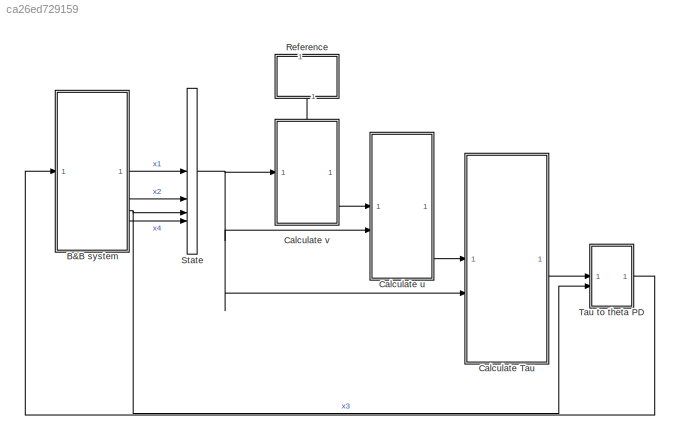
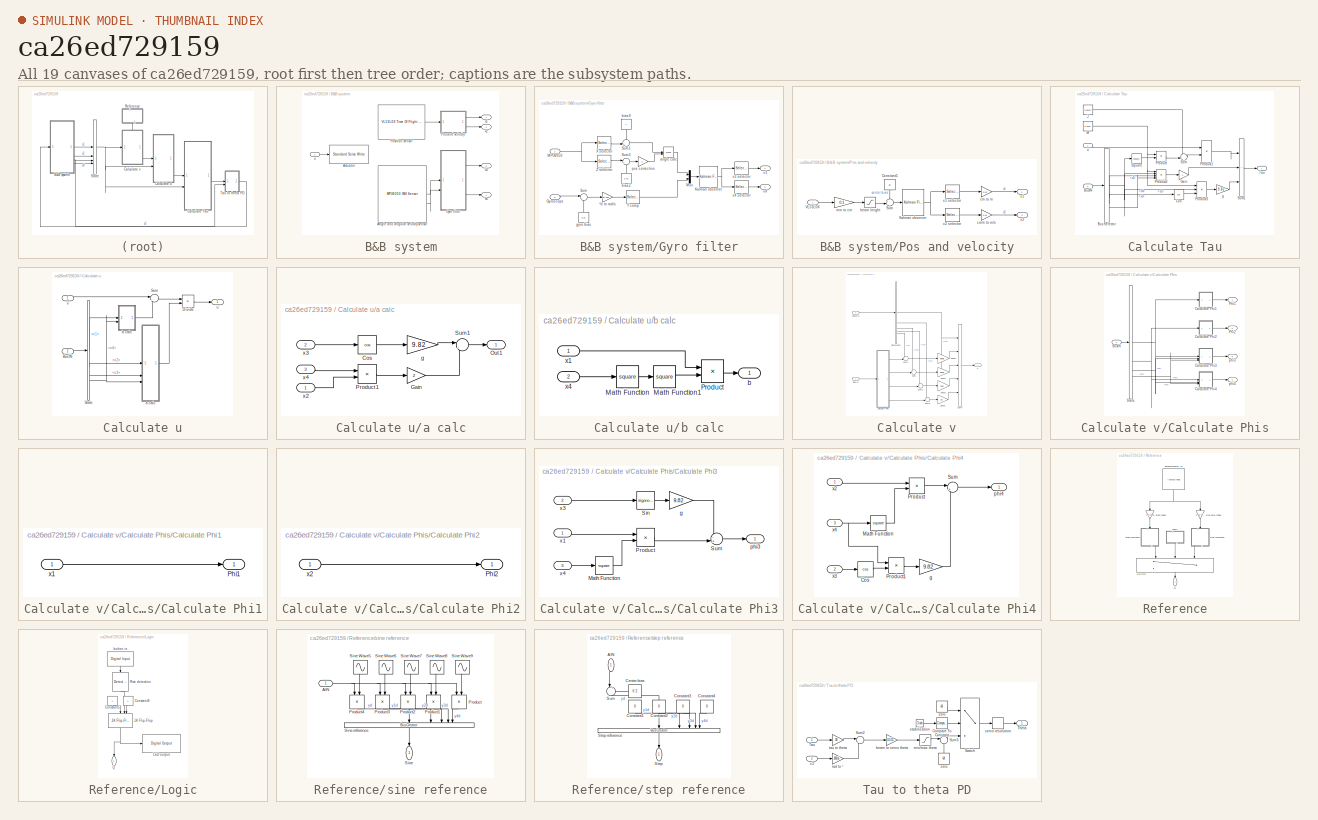
[diagram: thumbnail index - all 19 canvases of the model, root first then tree order]
MODEL slx_ca26ed729159
KIND model
CONFIG AbsTol = auto
CONFIG EnableMultiTasking = on
CONFIG FixedStep = 0.02
CONFIG MaxStep = auto
CONFIG MinStep = auto
CONFIG RelTol = 1e-3
CONFIG SampleTimeConstraint = Unconstrained
CONFIG SolverName = FixedStepAuto
CONFIG StartTime = 0.0
CONFIG StopTime = inf
BLOCK [SubSystem] B&B system
BLOCK [Reference] B&B system/Actuator  REF=arduinolib/Standard Servo Write
  SourceBlock = arduinolib/Standard Servo Write
  SourceType = Arduino Standard Servo Write
BLOCK [Reference] B&B system/Angle and angular velocity sensor  REF=arduinosensorlib/MPU6050 IMU Sensor
  SourceBlock = arduinosensorlib/MPU6050 IMU Sensor
  SourceType = MPU6050
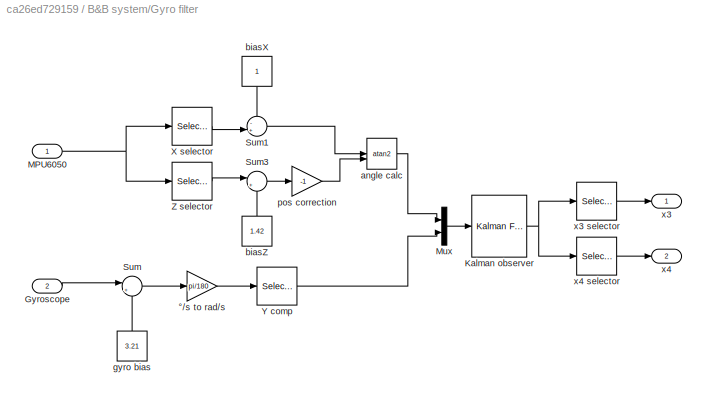
BLOCK [SubSystem] B&B system/Gyro filter
BLOCK [Inport] B&B system/Gyro filter/Gyroscope
  Port = 2
BLOCK [Reference] B&B system/Gyro filter/Kalman observer  REF=ctrlSharedLib/Kalman Filter
  LibrarySourceBlock = cstblocks/State Estimation/Kalman Filter
  SourceBlock = ctrlSharedLib/Kalman Filter
  SourceType = ctrlKalmanFilter
BLOCK [Inport] B&B system/Gyro filter/MPU6050
BLOCK [Mux] B&B system/Gyro filter/Mux
  DisplayOption = bar
  Inputs = 2
BLOCK [Sum] B&B system/Gyro filter/Sum
  Inputs = |+-
BLOCK [Sum] B&B system/Gyro filter/Sum1
  Inputs = -+|
BLOCK [Sum] B&B system/Gyro filter/Sum3
  Inputs = |++
BLOCK [Selector] B&B system/Gyro filter/X selector
  IndexOptions = Index vector (dialog),Index vector (dialog)
  Indices = 1,1
  InputPortWidth = 3
  NumberOfDimensions = 2
  OutputSizes = 1,1
BLOCK [Selector] B&B system/Gyro filter/Y comp
  IndexOptions = Index vector (dialog),Index vector (dialog)
  Indices = 2,1
  InputPortWidth = 3
  NumberOfDimensions = 2
  OutputSizes = 1,1
BLOCK [Selector] B&B system/Gyro filter/Z selector
  IndexOptions = Index vector (dialog),Index vector (dialog)
  Indices = 3,1
  InputPortWidth = 3
  NumberOfDimensions = 2
  OutputSizes = 1,1
BLOCK [Trigonometry] B&B system/Gyro filter/angle calc
  Operator = atan2
BLOCK [Constant] B&B system/Gyro filter/biasX
  NameLocation = left
BLOCK [Constant] B&B system/Gyro filter/biasZ
  NameLocation = right
  Value = 1.42
BLOCK [Constant] B&B system/Gyro filter/gyro bias
  NameLocation = right
  Value = 3.21
BLOCK [Gain] B&B system/Gyro filter/pos correction
  Gain = -1
BLOCK [Outport] B&B system/Gyro filter/x3
BLOCK [Selector] B&B system/Gyro filter/x3 selector
  IndexOptions = Index vector (dialog),Index vector (dialog)
  Indices = 1,1
  InputPortWidth = 3
  NumberOfDimensions = 2
  OutputSizes = 1,1
BLOCK [Outport] B&B system/Gyro filter/x4
  Port = 2
BLOCK [Selector] B&B system/Gyro filter/x4 selector
  IndexOptions = Index vector (dialog),Index vector (dialog)
  Indices = 2,1
  InputPortWidth = 3
  NumberOfDimensions = 2
  OutputSizes = 1,1
BLOCK [Gain] B&B system/Gyro filter/°//s to rad//s
  Gain = pi/180
BLOCK [SubSystem] B&B system/Pos and velocity
BLOCK [Constant] B&B system/Pos and velocity/Constant5
  NameLocation = left
  Value = 18
BLOCK [Reference] B&B system/Pos and velocity/Kalman observer  REF=ctrlSharedLib/Kalman Filter
  LibrarySourceBlock = cstblocks/State Estimation/Kalman Filter
  SourceBlock = ctrlSharedLib/Kalman Filter
  SourceType = ctrlKalmanFilter
BLOCK [Sum] B&B system/Pos and velocity/Sum
  Inputs = +-|
BLOCK [Inport] B&B system/Pos and velocity/VL53L0X
BLOCK [Saturate] B&B system/Pos and velocity/beam lenght
  LowerLimit = 0
  UpperLimit = 40
BLOCK [Gain] B&B system/Pos and velocity/cm to m
  Gain = 0.01
BLOCK [Gain] B&B system/Pos and velocity/cm//s to m//s
  Gain = 0.01
BLOCK [Gain] B&B system/Pos and velocity/mm to cm
  Gain = 0.1
  OutDataTypeStr = single
BLOCK [Outport] B&B system/Pos and velocity/x1
BLOCK [Selector] B&B system/Pos and velocity/x1 selector
  IndexOptions = Index vector (dialog),Index vector (dialog)
  Indices = 1,1
  InputPortWidth = 3
  NumberOfDimensions = 2
  OutputSizes = 1,1
BLOCK [Outport] B&B system/Pos and velocity/x2
  Port = 2
BLOCK [Selector] B&B system/Pos and velocity/x2 selector
  IndexOptions = Index vector (dialog),Index vector (dialog)
  Indices = 2,1
  InputPortWidth = 3
  NumberOfDimensions = 2
  OutputSizes = 1,1
BLOCK [Reference] B&B system/Position sensor  REF=arduinosensorlib/VL53L0X Time Of Flight Sensor
  SourceBlock = arduinosensorlib/VL53L0X Time Of Flight Sensor
  SourceType = Arduino VL53L0x
BLOCK [Inport] B&B system/u
BLOCK [Outport] B&B system/x1
BLOCK [Outport] B&B system/x2
  Port = 2
BLOCK [Outport] B&B system/x3
  Port = 3
BLOCK [Outport] B&B system/x4
  Port = 4
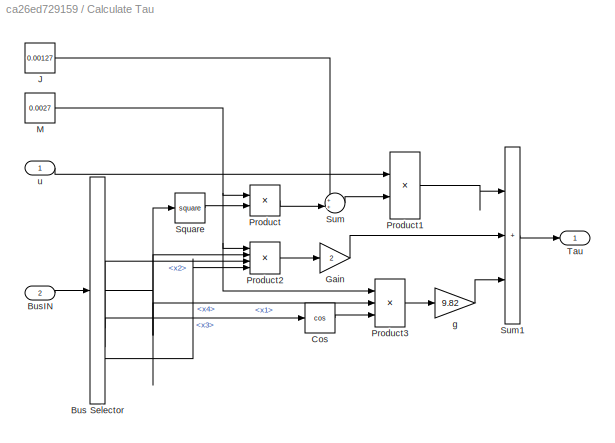
BLOCK [SubSystem] Calculate Tau
BLOCK [BusSelector] Calculate Tau/Bus Selector
  OutputSignals = x1,x2,x3,x4
BLOCK [Inport] Calculate Tau/BusIN
  Port = 2
BLOCK [Trigonometry] Calculate Tau/Cos
  Operator = cos
BLOCK [Gain] Calculate Tau/Gain
  Gain = 2
BLOCK [Constant] Calculate Tau/J
  Value = 0.00127
BLOCK [Constant] Calculate Tau/M
  Value = 0.0027
BLOCK [Product] Calculate Tau/Product
BLOCK [Product] Calculate Tau/Product1
BLOCK [Product] Calculate Tau/Product2
  Inputs = 4
BLOCK [Product] Calculate Tau/Product3
  Inputs = 3
BLOCK [Math] Calculate Tau/Square
  Operator = square
BLOCK [Sum] Calculate Tau/Sum
  Inputs = ++|
BLOCK [Sum] Calculate Tau/Sum1
  IconShape = rectangular
  Inputs = |+++
BLOCK [Outport] Calculate Tau/Tau
BLOCK [Gain] Calculate Tau/g
  Gain = 9.82
BLOCK [Inport] Calculate Tau/u
BLOCK [SubSystem] Calculate u
BLOCK [Inport] Calculate u/BusIN
  Port = 2
BLOCK [Product] Calculate u/Divide
  Inputs = */
BLOCK [BusSelector] Calculate u/State 
  OutputSignals = x1,x2,x3,x4
BLOCK [Sum] Calculate u/Sum
  Inputs = |+-
BLOCK [SubSystem] Calculate u/a calc
BLOCK [Trigonometry] Calculate u/a calc/Cos
  Operator = cos
BLOCK [Gain] Calculate u/a calc/Gain
  Gain = 2
BLOCK [Outport] Calculate u/a calc/Out1
BLOCK [Product] Calculate u/a calc/Product1
BLOCK [Sum] Calculate u/a calc/Sum1
  Inputs = |-+
BLOCK [Gain] Calculate u/a calc/g
  Gain = 9.82
BLOCK [Inport] Calculate u/a calc/x2
BLOCK [Inport] Calculate u/a calc/x3
  Port = 2
BLOCK [Inport] Calculate u/a calc/x4
  Port = 3
BLOCK [SubSystem] Calculate u/b calc
BLOCK [Math] Calculate u/b calc/Math Function
  Operator = square
BLOCK [Math] Calculate u/b calc/Math Function1
  Operator = square
BLOCK [Product] Calculate u/b calc/Product
BLOCK [Outport] Calculate u/b calc/b
BLOCK [Inport] Calculate u/b calc/x1
BLOCK [Inport] Calculate u/b calc/x4
  Port = 2
BLOCK [Outport] Calculate u/u
BLOCK [Inport] Calculate u/v
BLOCK [SubSystem] Calculate v
  PortSchema = {"entries":[{"content":{"sides":[{"content":{"connectorIds":["In1"]},"type":"ConnectorPlacement.EquallySpacedRectSide","uuid":"7c28e410-4806-4a94-8ccf-a14e347b0b8c"},{"content":{"connectorIds":["Out1"],"side":"RIGHT"},"type":"ConnectorPlacement.EquallySpacedRectSide","uuid":"f53d7206-bd2e-4f71-94df-5fcac3ff5314"},{"content":{"connectorIds":["In2"],"side":"TOP"},"type":"ConnectorPlacement.EquallySp...<+245ch>
BLOCK [Gain] Calculate v/Alpha0
  Gain = 4096
BLOCK [Gain] Calculate v/Alpha1
  Gain = 2048
BLOCK [Gain] Calculate v/Alpha2
  Gain = 384
BLOCK [Gain] Calculate v/Alpha3
  Gain = 32
BLOCK [Inport] Calculate v/BusIN
BLOCK [SubSystem] Calculate v/Calculate Phis
BLOCK [Inport] Calculate v/Calculate Phis/BusIN
BLOCK [SubSystem] Calculate v/Calculate Phis/Calculate Phi1
BLOCK [Outport] Calculate v/Calculate Phis/Calculate Phi1/Phi1
BLOCK [Inport] Calculate v/Calculate Phis/Calculate Phi1/x1
BLOCK [SubSystem] Calculate v/Calculate Phis/Calculate Phi2
BLOCK [Outport] Calculate v/Calculate Phis/Calculate Phi2/Phi2
BLOCK [Inport] Calculate v/Calculate Phis/Calculate Phi2/x2
BLOCK [SubSystem] Calculate v/Calculate Phis/Calculate Phi3
BLOCK [Math] Calculate v/Calculate Phis/Calculate Phi3/Math Function
  Operator = square
BLOCK [Product] Calculate v/Calculate Phis/Calculate Phi3/Product
BLOCK [Trigonometry] Calculate v/Calculate Phis/Calculate Phi3/Sin
BLOCK [Sum] Calculate v/Calculate Phis/Calculate Phi3/Sum
  Inputs = -+|
BLOCK [Gain] Calculate v/Calculate Phis/Calculate Phi3/g
  Gain = 9.82
BLOCK [Outport] Calculate v/Calculate Phis/Calculate Phi3/phi3
BLOCK [Inport] Calculate v/Calculate Phis/Calculate Phi3/x1
BLOCK [Inport] Calculate v/Calculate Phis/Calculate Phi3/x3
  Port = 2
BLOCK [Inport] Calculate v/Calculate Phis/Calculate Phi3/x4
  Port = 3
BLOCK [SubSystem] Calculate v/Calculate Phis/Calculate Phi4
BLOCK [Trigonometry] Calculate v/Calculate Phis/Calculate Phi4/Cos
  Operator = cos
BLOCK [Math] Calculate v/Calculate Phis/Calculate Phi4/Math Function
  Operator = square
BLOCK [Product] Calculate v/Calculate Phis/Calculate Phi4/Product
BLOCK [Product] Calculate v/Calculate Phis/Calculate Phi4/Product1
BLOCK [Sum] Calculate v/Calculate Phis/Calculate Phi4/Sum
  Inputs = |+-
BLOCK [Gain] Calculate v/Calculate Phis/Calculate Phi4/g
  Gain = 9.82
BLOCK [Outport] Calculate v/Calculate Phis/Calculate Phi4/phi4
BLOCK [Inport] Calculate v/Calculate Phis/Calculate Phi4/x2
BLOCK [Inport] Calculate v/Calculate Phis/Calculate Phi4/x3
  Port = 2
BLOCK [Inport] Calculate v/Calculate Phis/Calculate Phi4/x4
  Port = 3
BLOCK [Outport] Calculate v/Calculate Phis/Phi1
BLOCK [Outport] Calculate v/Calculate Phis/Phi2
  Port = 2
BLOCK [BusSelector] Calculate v/Calculate Phis/State
  OutputSignals = x1,x2,x3,x4
BLOCK [Outport] Calculate v/Calculate Phis/phi3
  Port = 3
BLOCK [Outport] Calculate v/Calculate Phis/phi4
  Port = 4
BLOCK [BusSelector] Calculate v/Reference
  OutputSignals = y4d,y3d,y2d,y1d,yd
BLOCK [Sum] Calculate v/Sum
  Inputs = +-|
BLOCK [Sum] Calculate v/Sum1
  Inputs = +-|
BLOCK [Sum] Calculate v/Sum2
  Inputs = +-|
BLOCK [Sum] Calculate v/Sum3
  Inputs = +-|
BLOCK [Sum] Calculate v/Sum4
  IconShape = rectangular
  Inputs = |+++++
BLOCK [Inport] Calculate v/YdbusIN
  Port = 2
BLOCK [Outport] Calculate v/v
BLOCK [SubSystem] Reference
  NameLocation = left
BLOCK [SubSystem] Reference/Logic
  NameLocation = top
BLOCK [Constant] Reference/Logic/Constant5
  NameLocation = left
  OutDataTypeStr = boolean
BLOCK [Constant] Reference/Logic/Constant8
  NameLocation = left
  OutDataTypeStr = boolean
BLOCK [Reference] Reference/Logic/J-K Flip-Flop  REF=simulink_extras/Flip Flops/J-K
Flip-Flop
  NameLocation = left
  SourceBlock = simulink_extras/Flip Flops/J-K\nFlip-Flop
  SourceType = JKFlipFlop
BLOCK [Reference] Reference/Logic/LED output  REF=arduinolib/Digital Output
  NameLocation = right
  SourceBlock = arduinolib/Digital Output
  SourceType = Arduino Digital Output
BLOCK [Outport] Reference/Logic/Q
  NameLocation = left
BLOCK [Reference] Reference/Logic/Rise detection  REF=simulink/Logic and Bit
Operations/Detect Rise
Positive
  NameLocation = left
  SourceBlock = simulink/Logic and Bit\nOperations/Detect Rise\nPositive
  SourceType = Detect Rise Positive
BLOCK [Reference] Reference/Logic/button in  REF=arduinolib/Digital Input
  NameLocation = left
  SourceBlock = arduinolib/Digital Input
  SourceType = Arduino Digital Input
BLOCK [Switch] Reference/Switch1
  InputSameDT = off
  NameLocation = left
  SaturateOnIntegerOverflow = off
BLOCK [Reference] Reference/potenciometer IN  REF=arduinolib/Analog Input
  NameLocation = left
  SourceBlock = arduinolib/Analog Input
  SourceType = Arduino Analog Input
BLOCK [Gain] Reference/sine amp range
  Gain = 0.08/4095
  NameLocation = left
BLOCK [SubSystem] Reference/sine reference
  NameLocation = right
BLOCK [Inport] Reference/sine reference/AIN
BLOCK [Product] Reference/sine reference/Product
  NameLocation = left
BLOCK [Product] Reference/sine reference/Product1
  NameLocation = left
BLOCK [Product] Reference/sine reference/Product2
  NameLocation = left
BLOCK [Product] Reference/sine reference/Product3
  NameLocation = left
BLOCK [Product] Reference/sine reference/Product4
  NameLocation = left
BLOCK [Outport] Reference/sine reference/Sine
  NameLocation = left
BLOCK [Sin] Reference/sine reference/Sine Wave5
  Frequency = pi
  NameLocation = left
  Phase = pi/2
  SampleTime = 0.02
BLOCK [Sin] Reference/sine reference/Sine Wave6
  Amplitude = -(1)*pi
  Frequency = pi
  NameLocation = left
  SampleTime = 0.02
BLOCK [Sin] Reference/sine reference/Sine Wave7
  Amplitude = -1*(pi)^2
  Frequency = pi
  NameLocation = left
  Phase = pi/2
  SampleTime = 0.02
BLOCK [Sin] Reference/sine reference/Sine Wave8
  Amplitude = 1*(pi)^3
  Frequency = pi
  NameLocation = left
  SampleTime = 0.02
BLOCK [Sin] Reference/sine reference/Sine Wave9
  Amplitude = 1*(pi)^4
  Frequency = pi
  NameLocation = left
  Phase = pi/2
  SampleTime = 0.02
BLOCK [BusCreator] Reference/sine reference/Sine reference
  DisplayOption = bar
  InheritFromInputs = on
  Inputs = 5
  NameLocation = left
BLOCK [Gain] Reference/step range
  Gain = 0.4/4095
  NameLocation = left
  OutDataTypeStr = single
BLOCK [SubSystem] Reference/step reference
  NameLocation = left
BLOCK [Inport] Reference/step reference/AIN
  NameLocation = left
BLOCK [Constant] Reference/step reference/Center bias
  NameLocation = top
  Value = 0.2
BLOCK [Constant] Reference/step reference/Constant1
  NameLocation = left
  Value = 0
BLOCK [Constant] Reference/step reference/Constant2
  NameLocation = left
  Value = 0
BLOCK [Constant] Reference/step reference/Constant3
  NameLocation = left
  Value = 0
BLOCK [Constant] Reference/step reference/Constant4
  NameLocation = left
  Value = 0
BLOCK [Outport] Reference/step reference/Step
  NameLocation = left
BLOCK [BusCreator] Reference/step reference/Step reference
  DisplayOption = bar
  InheritFromInputs = on
  Inputs = 5
  NameLocation = left
BLOCK [Sum] Reference/step reference/Sum
  Inputs = |-+
  NameLocation = left
BLOCK [Outport] Reference/yd
  NameLocation = left
BLOCK [BusCreator] State
  DisplayOption = bar
  InheritFromInputs = on
  Inputs = 4
BLOCK [SubSystem] Tau to theta PD
BLOCK [Reference] Tau to theta PD/Compare To Constant  REF=simulink/Logic and Bit
Operations/Compare
To Constant
  SourceBlock = simulink/Logic and Bit\nOperations/Compare\nTo Constant
  SourceType = Compare To Constant
BLOCK [Sum] Tau to theta PD/Sum2
  Inputs = |++
BLOCK [Sum] Tau to theta PD/Sum3
  Inputs = |-+
BLOCK [Switch] Tau to theta PD/Switch
  InputSameDT = off
  SaturateOnIntegerOverflow = off
BLOCK [Inport] Tau to theta PD/Tau
BLOCK [Outport] Tau to theta PD/Theta
BLOCK [Gain] Tau to theta PD/beam to servo theta
  Gain = 1/0.15
BLOCK [Saturate] Tau to theta PD/min//max theta
  LowerLimit = -60
  UpperLimit = 60
BLOCK [Gain] Tau to theta PD/rad to °
  Gain = 180/pi
BLOCK [Quantizer] Tau to theta PD/servo resolution
  QuantizationInterval = 1
BLOCK [Clock] Tau to theta PD/stabilization
BLOCK [Gain] Tau to theta PD/tau to theta
  Gain = 38
BLOCK [Inport] Tau to theta PD/x3
  Port = 2
BLOCK [Constant] Tau to theta PD/zero
  Value = 64
BLOCK [Constant] Tau to theta PD/zero 
  NameLocation = right
  Value = 64
LINE B&B system/Angle and angular velocity sensor:1 -> B&B system/Gyro filter:1
LINE B&B system/Angle and angular velocity sensor:2 -> B&B system/Gyro filter:2
LINE B&B system/Gyro filter/Gyroscope:1 -> B&B system/Gyro filter/Sum:1
NET B&B system/Gyro filter/Kalman observer:1 -> B&B system/Gyro filter/x3 selector:1, B&B system/Gyro filter/x4 selector:1
NET B&B system/Gyro filter/MPU6050:1 -> B&B system/Gyro filter/X selector:1, B&B system/Gyro filter/Z selector:1
LINE B&B system/Gyro filter/Mux:1 -> B&B system/Gyro filter/Kalman observer:1
LINE B&B system/Gyro filter/Sum1:1 -> B&B system/Gyro filter/angle calc:1
LINE B&B system/Gyro filter/Sum3:1 -> B&B system/Gyro filter/pos correction:1
LINE B&B system/Gyro filter/Sum:1 -> B&B system/Gyro filter/°//s to rad//s:1
LINE B&B system/Gyro filter/X selector:1 -> B&B system/Gyro filter/Sum1:2
LINE B&B system/Gyro filter/Y comp:1 -> B&B system/Gyro filter/Mux:2
LINE B&B system/Gyro filter/Z selector:1 -> B&B system/Gyro filter/Sum3:1
LINE B&B system/Gyro filter/angle calc:1 -> B&B system/Gyro filter/Mux:1
LINE B&B system/Gyro filter/biasX:1 -> B&B system/Gyro filter/Sum1:1
LINE B&B system/Gyro filter/biasZ:1 -> B&B system/Gyro filter/Sum3:2
LINE B&B system/Gyro filter/gyro bias:1 -> B&B system/Gyro filter/Sum:2
LINE B&B system/Gyro filter/pos correction:1 -> B&B system/Gyro filter/angle calc:2
LINE B&B system/Gyro filter/x3 selector:1 -> B&B system/Gyro filter/x3:1
LINE B&B system/Gyro filter/x4 selector:1 -> B&B system/Gyro filter/x4:1
LINE B&B system/Gyro filter/°//s to rad//s:1 -> B&B system/Gyro filter/Y comp:1
LINE B&B system/Gyro filter:1 -> B&B system/x3:1
LINE B&B system/Gyro filter:2 -> B&B system/x4:1
LINE B&B system/Pos and velocity/Constant5:1 -> B&B system/Pos and velocity/Sum:1
NET B&B system/Pos and velocity/Kalman observer:1 -> B&B system/Pos and velocity/x1 selector:1, B&B system/Pos and velocity/x2 selector:1
LINE B&B system/Pos and velocity/Sum:1 -> B&B system/Pos and velocity/Kalman observer:1
LINE B&B system/Pos and velocity/VL53L0X:1 -> B&B system/Pos and velocity/mm to cm:1
LINE B&B system/Pos and velocity/beam lenght:1 -> B&B system/Pos and velocity/Sum:2
LINE B&B system/Pos and velocity/cm to m:1 -> B&B system/Pos and velocity/x1:1
LINE B&B system/Pos and velocity/cm//s to m//s:1 -> B&B system/Pos and velocity/x2:1
LINE B&B system/Pos and velocity/mm to cm:1 -> B&B system/Pos and velocity/beam lenght:1
LINE B&B system/Pos and velocity/x1 selector:1 -> B&B system/Pos and velocity/cm to m:1
LINE B&B system/Pos and velocity/x2 selector:1 -> B&B system/Pos and velocity/cm//s to m//s:1
LINE B&B system/Pos and velocity:1 -> B&B system/x1:1
LINE B&B system/Pos and velocity:2 -> B&B system/x2:1
LINE B&B system/Position sensor:1 -> B&B system/Pos and velocity:1
LINE B&B system/u:1 -> B&B system/Actuator:1
LINE B&B system:1 -> State:1
LINE B&B system:2 -> State:2
NET B&B system:3 -> State:3, Tau to theta PD:2
LINE B&B system:4 -> State:4
NET Calculate Tau/Bus Selector:1 -> Calculate Tau/Product2:2, Calculate Tau/Product3:2, Calculate Tau/Square:1
LINE Calculate Tau/Bus Selector:2 -> Calculate Tau/Product2:3
LINE Calculate Tau/Bus Selector:3 -> Calculate Tau/Cos:1
LINE Calculate Tau/Bus Selector:4 -> Calculate Tau/Product2:4
LINE Calculate Tau/BusIN:1 -> Calculate Tau/Bus Selector:1
LINE Calculate Tau/Cos:1 -> Calculate Tau/Product3:3
LINE Calculate Tau/Gain:1 -> Calculate Tau/Sum1:2
LINE Calculate Tau/J:1 -> Calculate Tau/Sum:1
NET Calculate Tau/M:1 -> Calculate Tau/Product2:1, Calculate Tau/Product3:1, Calculate Tau/Product:1
LINE Calculate Tau/Product1:1 -> Calculate Tau/Sum1:1
LINE Calculate Tau/Product2:1 -> Calculate Tau/Gain:1
LINE Calculate Tau/Product3:1 -> Calculate Tau/g:1
LINE Calculate Tau/Product:1 -> Calculate Tau/Sum:2
LINE Calculate Tau/Square:1 -> Calculate Tau/Product:2
LINE Calculate Tau/Sum1:1 -> Calculate Tau/Tau:1
LINE Calculate Tau/Sum:1 -> Calculate Tau/Product1:2
LINE Calculate Tau/g:1 -> Calculate Tau/Sum1:3
LINE Calculate Tau/u:1 -> Calculate Tau/Product1:1
LINE Calculate Tau:1 -> Tau to theta PD:1
LINE Calculate u/BusIN:1 -> Calculate u/State :1
LINE Calculate u/Divide:1 -> Calculate u/u:1
LINE Calculate u/State :1 -> Calculate u/b calc:1
LINE Calculate u/State :2 -> Calculate u/a calc:1
LINE Calculate u/State :3 -> Calculate u/a calc:2
NET Calculate u/State :4 -> Calculate u/a calc:3, Calculate u/b calc:2
LINE Calculate u/Sum:1 -> Calculate u/Divide:1
LINE Calculate u/a calc/Cos:1 -> Calculate u/a calc/g:1
LINE Calculate u/a calc/Gain:1 -> Calculate u/a calc/Sum1:2
LINE Calculate u/a calc/Product1:1 -> Calculate u/a calc/Gain:1
LINE Calculate u/a calc/Sum1:1 -> Calculate u/a calc/Out1:1
LINE Calculate u/a calc/g:1 -> Calculate u/a calc/Sum1:1
LINE Calculate u/a calc/x2:1 -> Calculate u/a calc/Product1:2
LINE Calculate u/a calc/x3:1 -> Calculate u/a calc/Cos:1
LINE Calculate u/a calc/x4:1 -> Calculate u/a calc/Product1:1
LINE Calculate u/a calc:1 -> Calculate u/Divide:2
LINE Calculate u/b calc/Math Function1:1 -> Calculate u/b calc/Product:2
LINE Calculate u/b calc/Math Function:1 -> Calculate u/b calc/Math Function1:1
LINE Calculate u/b calc/Product:1 -> Calculate u/b calc/b:1
LINE Calculate u/b calc/x1:1 -> Calculate u/b calc/Product:1
LINE Calculate u/b calc/x4:1 -> Calculate u/b calc/Math Function:1
LINE Calculate u/b calc:1 -> Calculate u/Sum:2
LINE Calculate u/v:1 -> Calculate u/Sum:1
LINE Calculate u:1 -> Calculate Tau:1
LINE Calculate v/Alpha0:1 -> Calculate v/Sum4:2
LINE Calculate v/Alpha1:1 -> Calculate v/Sum4:3
LINE Calculate v/Alpha2:1 -> Calculate v/Sum4:4
LINE Calculate v/Alpha3:1 -> Calculate v/Sum4:5
LINE Calculate v/BusIN:1 -> Calculate v/Calculate Phis:1
LINE Calculate v/Calculate Phis/BusIN:1 -> Calculate v/Calculate Phis/State:1
LINE Calculate v/Calculate Phis/Calculate Phi1/x1:1 -> Calculate v/Calculate Phis/Calculate Phi1/Phi1:1
LINE Calculate v/Calculate Phis/Calculate Phi1:1 -> Calculate v/Calculate Phis/Phi1:1
LINE Calculate v/Calculate Phis/Calculate Phi2/x2:1 -> Calculate v/Calculate Phis/Calculate Phi2/Phi2:1
LINE Calculate v/Calculate Phis/Calculate Phi2:1 -> Calculate v/Calculate Phis/Phi2:1
LINE Calculate v/Calculate Phis/Calculate Phi3/Math Function:1 -> Calculate v/Calculate Phis/Calculate Phi3/Product:2
LINE Calculate v/Calculate Phis/Calculate Phi3/Product:1 -> Calculate v/Calculate Phis/Calculate Phi3/Sum:2
LINE Calculate v/Calculate Phis/Calculate Phi3/Sin:1 -> Calculate v/Calculate Phis/Calculate Phi3/g:1
LINE Calculate v/Calculate Phis/Calculate Phi3/Sum:1 -> Calculate v/Calculate Phis/Calculate Phi3/phi3:1
LINE Calculate v/Calculate Phis/Calculate Phi3/g:1 -> Calculate v/Calculate Phis/Calculate Phi3/Sum:1
LINE Calculate v/Calculate Phis/Calculate Phi3/x1:1 -> Calculate v/Calculate Phis/Calculate Phi3/Product:1
LINE Calculate v/Calculate Phis/Calculate Phi3/x3:1 -> Calculate v/Calculate Phis/Calculate Phi3/Sin:1
LINE Calculate v/Calculate Phis/Calculate Phi3/x4:1 -> Calculate v/Calculate Phis/Calculate Phi3/Math Function:1
LINE Calculate v/Calculate Phis/Calculate Phi3:1 -> Calculate v/Calculate Phis/phi3:1
LINE Calculate v/Calculate Phis/Calculate Phi4/Cos:1 -> Calculate v/Calculate Phis/Calculate Phi4/Product1:2
LINE Calculate v/Calculate Phis/Calculate Phi4/Math Function:1 -> Calculate v/Calculate Phis/Calculate Phi4/Product:2
LINE Calculate v/Calculate Phis/Calculate Phi4/Product1:1 -> Calculate v/Calculate Phis/Calculate Phi4/g:1
LINE Calculate v/Calculate Phis/Calculate Phi4/Product:1 -> Calculate v/Calculate Phis/Calculate Phi4/Sum:1
LINE Calculate v/Calculate Phis/Calculate Phi4/Sum:1 -> Calculate v/Calculate Phis/Calculate Phi4/phi4:1
LINE Calculate v/Calculate Phis/Calculate Phi4/g:1 -> Calculate v/Calculate Phis/Calculate Phi4/Sum:2
LINE Calculate v/Calculate Phis/Calculate Phi4/x2:1 -> Calculate v/Calculate Phis/Calculate Phi4/Product:1
LINE Calculate v/Calculate Phis/Calculate Phi4/x3:1 -> Calculate v/Calculate Phis/Calculate Phi4/Cos:1
NET Calculate v/Calculate Phis/Calculate Phi4/x4:1 -> Calculate v/Calculate Phis/Calculate Phi4/Math Function:1, Calculate v/Calculate Phis/Calculate Phi4/Product1:1
LINE Calculate v/Calculate Phis/Calculate Phi4:1 -> Calculate v/Calculate Phis/phi4:1
NET Calculate v/Calculate Phis/State:1 -> Calculate v/Calculate Phis/Calculate Phi1:1, Calculate v/Calculate Phis/Calculate Phi3:1
NET Calculate v/Calculate Phis/State:2 -> Calculate v/Calculate Phis/Calculate Phi2:1, Calculate v/Calculate Phis/Calculate Phi4:1
NET Calculate v/Calculate Phis/State:3 -> Calculate v/Calculate Phis/Calculate Phi3:2, Calculate v/Calculate Phis/Calculate Phi4:2
NET Calculate v/Calculate Phis/State:4 -> Calculate v/Calculate Phis/Calculate Phi3:3, Calculate v/Calculate Phis/Calculate Phi4:3
LINE Calculate v/Calculate Phis:1 -> Calculate v/Sum1:2
LINE Calculate v/Calculate Phis:2 -> Calculate v/Sum:2
LINE Calculate v/Calculate Phis:3 -> Calculate v/Sum2:2
LINE Calculate v/Calculate Phis:4 -> Calculate v/Sum3:2
LINE Calculate v/Reference:1 -> Calculate v/Sum4:1
LINE Calculate v/Reference:2 -> Calculate v/Sum3:1
LINE Calculate v/Reference:3 -> Calculate v/Sum:1
LINE Calculate v/Reference:4 -> Calculate v/Sum2:1
LINE Calculate v/Reference:5 -> Calculate v/Sum1:1
LINE Calculate v/Sum1:1 -> Calculate v/Alpha0:1
LINE Calculate v/Sum2:1 -> Calculate v/Alpha2:1
LINE Calculate v/Sum3:1 -> Calculate v/Alpha3:1
LINE Calculate v/Sum4:1 -> Calculate v/v:1
LINE Calculate v/Sum:1 -> Calculate v/Alpha1:1
LINE Calculate v/YdbusIN:1 -> Calculate v/Reference:1
LINE Calculate v:1 -> Calculate u:1
LINE Reference/Logic/Constant5:1 -> Reference/Logic/J-K Flip-Flop:1
LINE Reference/Logic/Constant8:1 -> Reference/Logic/J-K Flip-Flop:3
NET Reference/Logic/J-K Flip-Flop:1 -> Reference/Logic/LED output:1, Reference/Logic/Q:1
LINE Reference/Logic/Rise detection:1 -> Reference/Logic/J-K Flip-Flop:2
LINE Reference/Logic/button in:1 -> Reference/Logic/Rise detection:1
LINE Reference/Logic:1 -> Reference/Switch1:2
LINE Reference/Switch1:1 -> Reference/yd:1
NET Reference/potenciometer IN:1 -> Reference/sine amp range:1, Reference/step range:1
LINE Reference/sine amp range:1 -> Reference/sine reference:1
NET Reference/sine reference/AIN:1 -> Reference/sine reference/Product1:1, Reference/sine reference/Product2:1, Reference/sine reference/Product3:1, Reference/sine reference/Product4:1, Reference/sine reference/Product:1
LINE Reference/sine reference/Product1:1 -> Reference/sine reference/Sine reference:4
LINE Reference/sine reference/Product2:1 -> Reference/sine reference/Sine reference:3
LINE Reference/sine reference/Product3:1 -> Reference/sine reference/Sine reference:2
LINE Reference/sine reference/Product4:1 -> Reference/sine reference/Sine reference:1
LINE Reference/sine reference/Product:1 -> Reference/sine reference/Sine reference:5
LINE Reference/sine reference/Sine Wave5:1 -> Reference/sine reference/Product4:2
LINE Reference/sine reference/Sine Wave6:1 -> Reference/sine reference/Product3:2
LINE Reference/sine reference/Sine Wave7:1 -> Reference/sine reference/Product2:2
LINE Reference/sine reference/Sine Wave8:1 -> Reference/sine reference/Product1:2
LINE Reference/sine reference/Sine Wave9:1 -> Reference/sine reference/Product:2
LINE Reference/sine reference/Sine reference:1 -> Reference/sine reference/Sine:1
LINE Reference/sine reference:1 -> Reference/Switch1:3
LINE Reference/step range:1 -> Reference/step reference:1
LINE Reference/step reference/AIN:1 -> Reference/step reference/Sum:1
LINE Reference/step reference/Center bias:1 -> Reference/step reference/Sum:2
LINE Reference/step reference/Constant1:1 -> Reference/step reference/Step reference:2
LINE Reference/step reference/Constant2:1 -> Reference/step reference/Step reference:3
LINE Reference/step reference/Constant3:1 -> Reference/step reference/Step reference:4
LINE Reference/step reference/Constant4:1 -> Reference/step reference/Step reference:5
LINE Reference/step reference/Step reference:1 -> Reference/step reference/Step:1
LINE Reference/step reference/Sum:1 -> Reference/step reference/Step reference:1
LINE Reference/step reference:1 -> Reference/Switch1:1
LINE Reference:1 -> Calculate v:2
NET State:1 -> Calculate Tau:2, Calculate u:2, Calculate v:1
LINE Tau to theta PD/Compare To Constant:1 -> Tau to theta PD/Switch:2
LINE Tau to theta PD/Sum2:1 -> Tau to theta PD/beam to servo theta:1
LINE Tau to theta PD/Sum3:1 -> Tau to theta PD/Switch:3
LINE Tau to theta PD/Switch:1 -> Tau to theta PD/servo resolution:1
LINE Tau to theta PD/Tau:1 -> Tau to theta PD/tau to theta:1
LINE Tau to theta PD/beam to servo theta:1 -> Tau to theta PD/min//max theta:1
LINE Tau to theta PD/min//max theta:1 -> Tau to theta PD/Sum3:1
LINE Tau to theta PD/rad to °:1 -> Tau to theta PD/Sum2:2
LINE Tau to theta PD/servo resolution:1 -> Tau to theta PD/Theta:1
LINE Tau to theta PD/stabilization:1 -> Tau to theta PD/Compare To Constant:1
LINE Tau to theta PD/tau to theta:1 -> Tau to theta PD/Sum2:1
LINE Tau to theta PD/x3:1 -> Tau to theta PD/rad to °:1
LINE Tau to theta PD/zero :1 -> Tau to theta PD/Sum3:2
LINE Tau to theta PD/zero:1 -> Tau to theta PD/Switch:1
LINE Tau to theta PD:1 -> B&B system:1
note: NET lines group one-source signal fan-out (src -> all destinations, sorted); 1:1 wires keep LINE
